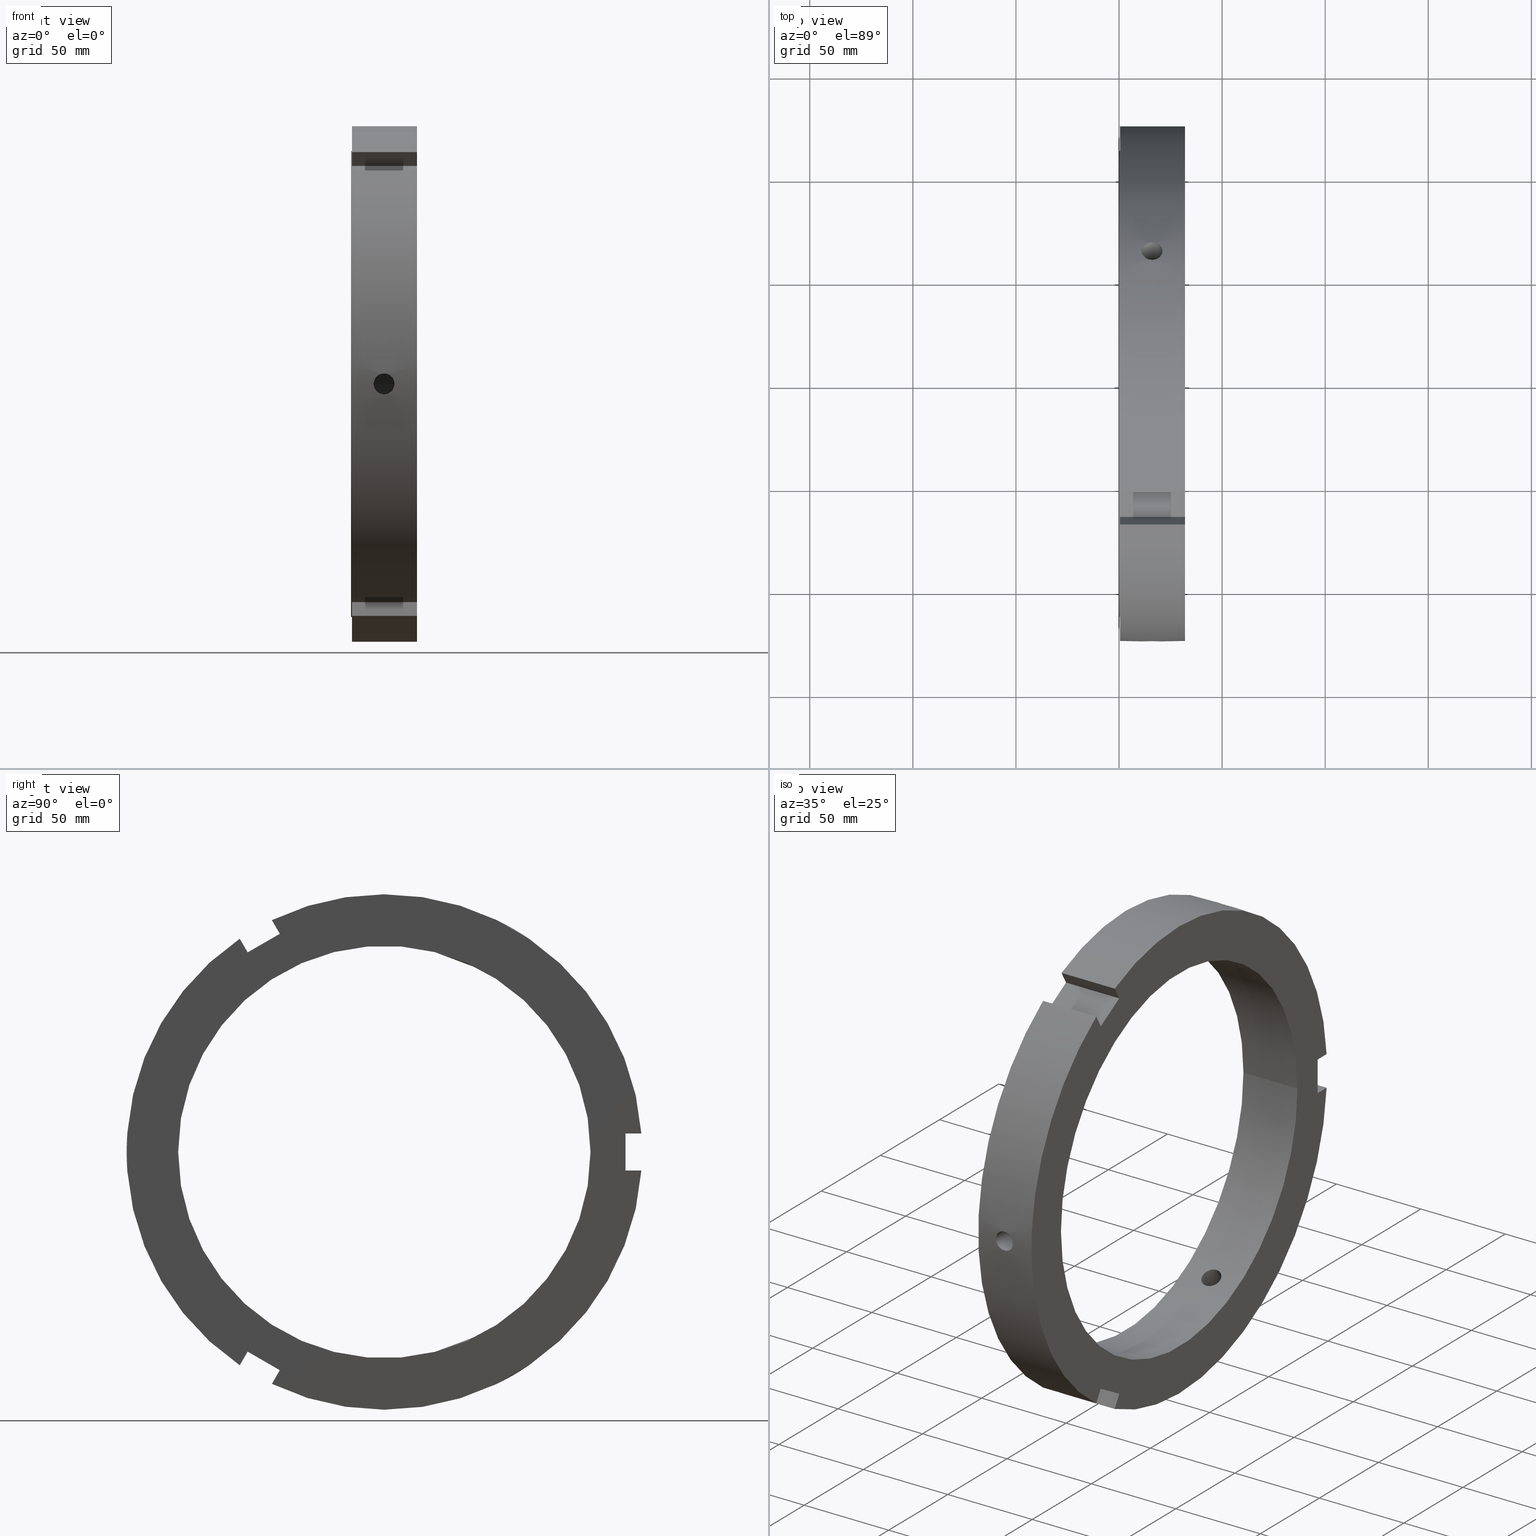
[diagram: canonical four-view strip — front | top / right | iso, engineering-drawing reading convention]
A machine part, canonical four-view strip (front | top / right | iso — engineering-drawing reading convention). The complete STEP part file that produces these views, byte-faithful:
ISO-10303-21;
HEADER;
/****************************************************************
 * Generated by software with PDElib inside                    *
 * PDElib Version v51a, created Wed 11/30/2011                  *
 * ITI Transcendata (http://www.transcendata.com/)              *
 ****************************************************************/
FILE_DESCRIPTION((''),'2;1');
FILE_NAME('C:\\Users\\sugidesign\\Documents\\Fukuda\\3Ddata\\ZMTtype\\FKD ZMT200.stp','2014-02-21T21:17:50',('sugidesign'),(''),'Autodesk Inventor LT ','Autodesk Inventor LT ','');
FILE_SCHEMA(('CONFIG_CONTROL_DESIGN'));
ENDSEC;
DATA;
#5=APPLICATION_CONTEXT('configuration controlled 3D designs of mechanical parts and assemblies');
#6=APPLICATION_PROTOCOL_DEFINITION('International Standard','ap203_configuration_controlled_3d_design_of_mechanical_parts_and_assemblies_mim_lf',2004,#5);
#7=PRODUCT_CONTEXT('',#5,'mechanical');
#8=PRODUCT('FKD ZMT200','FKD ZMT200',$,(#7));
#9=PRODUCT_RELATED_PRODUCT_CATEGORY('part',$,(#8));
#10=PRODUCT_DEFINITION_FORMATION('',$,#8);
#11=PRODUCT_DEFINITION_CONTEXT('part definition',#5,'design');
#12=PRODUCT_DEFINITION('',$,#10,#11);
#18=(NAMED_UNIT(*)PLANE_ANGLE_UNIT()SI_UNIT($,.RADIAN.));
#19=DIMENSIONAL_EXPONENTS(0.0,0.0,0.0,0.0,0.0,0.0,0.0);
#20=PLANE_ANGLE_MEASURE_WITH_UNIT(PLANE_ANGLE_MEASURE(0.0174532925),#18);
#24=(CONVERSION_BASED_UNIT('DEGREE',#20)NAMED_UNIT(#19)PLANE_ANGLE_UNIT());
#28=(NAMED_UNIT(*)SI_UNIT($,.STERADIAN.)SOLID_ANGLE_UNIT());
#32=(LENGTH_UNIT()NAMED_UNIT(*)SI_UNIT(.MILLI.,.METRE.));
#34=UNCERTAINTY_MEASURE_WITH_UNIT(LENGTH_MEASURE(0.01),#32,'DISTANCE_ACCURACY_VALUE','');
#36=(GEOMETRIC_REPRESENTATION_CONTEXT(3)GLOBAL_UNCERTAINTY_ASSIGNED_CONTEXT((#34))GLOBAL_UNIT_ASSIGNED_CONTEXT((#24,#28,#32))REPRESENTATION_CONTEXT('None','None'));
#37=AXIS2_PLACEMENT_3D('',#38,#39,#40);
#38=CARTESIAN_POINT('',(0.0,0.0,0.0));
#39=DIRECTION('',(0.0,0.0,1.0));
#40=DIRECTION('',(1.0,0.0,0.0));
#41=SHAPE_REPRESENTATION('',(#37),#36);
#42=PRODUCT_DEFINITION_SHAPE('','',#12);
#43=SHAPE_DEFINITION_REPRESENTATION(#42,#41);
#49=(NAMED_UNIT(*)PLANE_ANGLE_UNIT()SI_UNIT($,.RADIAN.));
#50=DIMENSIONAL_EXPONENTS(0.0,0.0,0.0,0.0,0.0,0.0,0.0);
#51=PLANE_ANGLE_MEASURE_WITH_UNIT(PLANE_ANGLE_MEASURE(0.0174532925),#49);
#55=(CONVERSION_BASED_UNIT('DEGREE',#51)NAMED_UNIT(#50)PLANE_ANGLE_UNIT());
#59=(NAMED_UNIT(*)SI_UNIT($,.STERADIAN.)SOLID_ANGLE_UNIT());
#63=(LENGTH_UNIT()NAMED_UNIT(*)SI_UNIT(.MILLI.,.METRE.));
#65=UNCERTAINTY_MEASURE_WITH_UNIT(LENGTH_MEASURE(0.000001),#63,'DISTANCE_ACCURACY_VALUE','');
#67=(GEOMETRIC_REPRESENTATION_CONTEXT(3)GLOBAL_UNCERTAINTY_ASSIGNED_CONTEXT((#65))GLOBAL_UNIT_ASSIGNED_CONTEXT((#55,#59,#63))REPRESENTATION_CONTEXT('','3D'));
#68=CARTESIAN_POINT('',(15.999999999999975,177.35938501767177,307.25485216485737));
#69=DIRECTION('',(0.0,-0.500000000000001,-0.866025403784438));
#70=DIRECTION('',(-1.0,0.0,0.0));
#71=AXIS2_PLACEMENT_3D('',#68,#69,#70);
#72=CYLINDRICAL_SURFACE('',#71,5.053);
#73=CARTESIAN_POINT('',(15.999999999999975,66.799823805904879,105.65407488355604));
#74=VERTEX_POINT('',#73);
#75=CARTESIAN_POINT('',(15.999999999999975,66.799823805904865,105.65407488355604));
#76=CARTESIAN_POINT('',(16.634539898765915,66.799823805904865,105.65407488355604));
#77=CARTESIAN_POINT('',(17.311328175890797,66.692639806818789,105.72208082410461));
#78=CARTESIAN_POINT('',(18.556263846837638,66.255606156496384,105.99651518313765));
#79=CARTESIAN_POINT('',(19.124417048440161,65.925621242383059,106.20270178079448));
#80=CARTESIAN_POINT('',(20.021609249121362,65.16134981881541,106.67333261011693));
#81=CARTESIAN_POINT('',(20.410476452290453,64.676076732797313,106.96912009274152));
#82=CARTESIAN_POINT('',(20.926173719096191,63.607415453230338,107.60801203591141));
#83=CARTESIAN_POINT('',(21.052999999999969,63.023884439497088,107.95088062767005));
#84=CARTESIAN_POINT('',(21.05299999999998,61.924678049597063,108.58515963331965));
#85=CARTESIAN_POINT('',(20.926172027311864,61.335816936191634,108.9188005909576));
#86=CARTESIAN_POINT('',(20.410471918155388,60.247892729625015,109.52433055282179));
#87=CARTESIAN_POINT('',(20.021603653115172,59.748962345568103,109.79646125430671));
#88=CARTESIAN_POINT('',(19.124412178461192,58.959038589527125,110.2226527198965));
#89=CARTESIAN_POINT('',(18.556261137858222,58.615392390216819,110.40517358820146));
#90=CARTESIAN_POINT('',(17.311328183428717,58.159087048186457,110.64622530330053));
#91=CARTESIAN_POINT('',(16.634540372385892,58.046569781148861,110.70499418112185));
#92=CARTESIAN_POINT('',(15.365459627614053,58.046569781148861,110.70499418112185));
#93=CARTESIAN_POINT('',(14.68867181657123,58.159087048186457,110.64622530330053));
#94=CARTESIAN_POINT('',(13.443738862141728,58.615392390216819,110.40517358820146));
#95=CARTESIAN_POINT('',(12.875587821538756,58.959038589527125,110.2226527198965));
#96=CARTESIAN_POINT('',(11.978396346884779,59.748962345568103,109.79646125430671));
#97=CARTESIAN_POINT('',(11.589528081844557,60.247892729625022,109.52433055282179));
#98=CARTESIAN_POINT('',(11.073827972688084,61.335816936191627,108.9188005909576));
#99=CARTESIAN_POINT('',(10.946999999999969,61.924678049597055,108.58515963331965));
#100=CARTESIAN_POINT('',(10.946999999999978,63.023884439497088,107.95088062767005));
#101=CARTESIAN_POINT('',(11.073826280903749,63.607415453230345,107.60801203591141));
#102=CARTESIAN_POINT('',(11.589523547709497,64.676076732797327,106.96912009274151));
#103=CARTESIAN_POINT('',(11.978390750878582,65.16134981881541,106.67333261011694));
#104=CARTESIAN_POINT('',(12.875582951559785,65.925621242383059,106.20270178079448));
#105=CARTESIAN_POINT('',(13.443736153162311,66.255606156496384,105.99651518313765));
#106=CARTESIAN_POINT('',(14.688671824109152,66.692639806818789,105.72208082410461));
#107=CARTESIAN_POINT('',(15.365460101234031,66.799823805904865,105.65407488355604));
#108=CARTESIAN_POINT('',(15.999999999999972,66.799823805904865,105.65407488355604));
#109=B_SPLINE_CURVE_WITH_KNOTS('',3,(#75,#76,#77,#78,#79,#80,#81,#82,#83,#84,#85,#86,#87,#88,#89,#90,#91,#92,#93,#94,#95,#96,#97,#98,#99,#100,#101,#102,#103,#104,#105,#106,#107,#108),.UNSPECIFIED.,.T.,.U.,(4,2,2,2,2,2,2,2,2,2,2,2,2,2,2,2,4),(0.0,0.190361969629782,0.380723939259564,0.571085258675598,0.761446578091632,0.951809317561347,1.142172057031061,1.332534168746837,1.522896280462613,1.71325839217839,1.903620503894165,2.09398324336388,2.284345982833595,2.474707302249628,2.665068621665663,2.855430591295445,3.045792560925227),.UNSPECIFIED.);
#110=EDGE_CURVE('',#74,#74,#109,.T.);
#111=ORIENTED_EDGE('',*,*,#110,.F.);
#112=EDGE_LOOP('',(#111));
#113=FACE_OUTER_BOUND('',#112,.T.);
#114=CARTESIAN_POINT('',(15.999999999999975,54.287187545342242,83.981553143632922));
#115=VERTEX_POINT('',#114);
#116=CARTESIAN_POINT('',(15.999999999999975,54.287187545342206,83.981553143632937));
#117=CARTESIAN_POINT('',(15.365418436397359,54.287187545342206,83.981553143632937));
#118=CARTESIAN_POINT('',(14.688612043602964,54.180654323349671,84.050718796506089));
#119=CARTESIAN_POINT('',(13.443687128228978,53.746008479316949,84.329314034823113));
#120=CARTESIAN_POINT('',(12.875559516983506,53.417727458635582,84.538440174283153));
#121=CARTESIAN_POINT('',(11.97841131245228,52.656676460987498,85.014562845706649));
#122=CARTESIAN_POINT('',(11.589550721528081,52.173117031114764,85.313266597317806));
#123=CARTESIAN_POINT('',(11.073842110040466,51.106837676011935,85.956260627153313));
#124=CARTESIAN_POINT('',(10.946999999999974,50.523937820894048,86.300257221341184));
#125=CARTESIAN_POINT('',(10.946999999999974,49.424621477739251,86.934512655054107));
#126=CARTESIAN_POINT('',(11.073844754652999,48.835057767136753,87.266973943154227));
#127=CARTESIAN_POINT('',(11.589557809032717,47.744697355418275,87.868262090224576));
#128=CARTESIAN_POINT('',(11.978420059590974,47.244064792742165,88.137391732525828));
#129=CARTESIAN_POINT('',(12.875567127552397,46.450943695473548,88.557954511774568));
#130=CARTESIAN_POINT('',(13.443691360268444,46.105581404633291,88.737489256011401));
#131=CARTESIAN_POINT('',(14.688612028518014,45.646836445148764,88.974338765420541));
#132=CARTESIAN_POINT('',(15.365417693025883,45.533632505297987,89.031951067425652));
#133=CARTESIAN_POINT('',(16.634582306974064,45.533632505297987,89.031951067425652));
#134=CARTESIAN_POINT('',(17.311387971481935,45.646836445148779,88.974338765420541));
#135=CARTESIAN_POINT('',(18.556308639731501,46.105581404633291,88.737489256011401));
#136=CARTESIAN_POINT('',(19.124432872447553,46.450943695473548,88.557954511774582));
#137=CARTESIAN_POINT('',(20.02157994040898,47.244064792742165,88.137391732525828));
#138=CARTESIAN_POINT('',(20.410442190967238,47.744697355418289,87.868262090224562));
#139=CARTESIAN_POINT('',(20.926155245346955,48.835057767136767,87.266973943154213));
#140=CARTESIAN_POINT('',(21.05299999999998,49.424621477739251,86.934512655054107));
#141=CARTESIAN_POINT('',(21.052999999999969,50.523937820894048,86.300257221341184));
#142=CARTESIAN_POINT('',(20.926157889959484,51.106837676011935,85.956260627153313));
#143=CARTESIAN_POINT('',(20.410449278471869,52.173117031114764,85.313266597317806));
#144=CARTESIAN_POINT('',(20.02158868754767,52.656676460987498,85.014562845706649));
#145=CARTESIAN_POINT('',(19.124440483016443,53.417727458635582,84.538440174283153));
#146=CARTESIAN_POINT('',(18.556312871770974,53.746008479316949,84.329314034823113));
#147=CARTESIAN_POINT('',(17.311387956396985,54.180654323349671,84.050718796506089));
#148=CARTESIAN_POINT('',(16.634581563602595,54.287187545342206,83.981553143632937));
#149=CARTESIAN_POINT('',(15.999999999999977,54.287187545342206,83.981553143632937));
#150=B_SPLINE_CURVE_WITH_KNOTS('',3,(#116,#117,#118,#119,#120,#121,#122,#123,#124,#125,#126,#127,#128,#129,#130,#131,#132,#133,#134,#135,#136,#137,#138,#139,#140,#141,#142,#143,#144,#145,#146,#147,#148,#149),.UNSPECIFIED.,.T.,.U.,(4,2,2,2,2,2,2,2,2,2,2,2,2,2,2,2,4),(0.0,0.190374469080785,0.380748938161569,0.571122376250658,0.761495814339746,0.951871472082737,1.142247129825728,1.332621821917955,1.522996514010182,1.713371206102409,1.903745898194637,2.094121555937627,2.284497213680618,2.474870651769706,2.665244089858795,2.855618558939579,3.045993028020364),.UNSPECIFIED.);
#151=EDGE_CURVE('',#115,#115,#150,.T.);
#152=ORIENTED_EDGE('',*,*,#151,.F.);
#153=EDGE_LOOP('',(#152));
#154=FACE_BOUND('',#153,.T.);
#155=ADVANCED_FACE('',(#113,#154),#72,.F.);
#156=CARTESIAN_POINT('',(15.999999999999975,177.41081490196279,-307.22515910731755));
#157=DIRECTION('',(0.0,-0.5,0.866025403784439));
#158=DIRECTION('',(-1.0,0.0,0.0));
#159=AXIS2_PLACEMENT_3D('',#156,#157,#158);
#160=CYLINDRICAL_SURFACE('',#159,5.053);
#161=CARTESIAN_POINT('',(15.999999999999975,58.099200959550515,-110.67738182601613));
#162=VERTEX_POINT('',#161);
#163=CARTESIAN_POINT('',(15.999999999999972,58.099200959550508,-110.67738182601613));
#164=CARTESIAN_POINT('',(16.634539898765912,58.099200959550508,-110.67738182601613));
#165=CARTESIAN_POINT('',(17.311328175890807,58.211687831216842,-110.61856073020267));
#166=CARTESIAN_POINT('',(18.556263846837648,58.667871782971979,-110.37729566623133));
#167=CARTESIAN_POINT('',(19.124417048440172,59.011427071519371,-110.19461364657201));
#168=CARTESIAN_POINT('',(20.021609249121369,59.801141037300596,-109.76805059303715));
#169=CARTESIAN_POINT('',(20.410476452290467,60.299937054383946,-109.4956855140849));
#170=CARTESIAN_POINT('',(20.926173719096202,61.387564347225769,-108.88964366952408));
#171=CARTESIAN_POINT('',(21.05299999999998,61.976262764715173,-108.55572528361428));
#172=CARTESIAN_POINT('',(21.052999999999969,63.075167691644864,-107.92092412878347));
#173=CARTESIAN_POINT('',(20.926172027311868,63.658539793404998,-107.57777592409255));
#174=CARTESIAN_POINT('',(20.410471918155388,64.726906226415338,-106.93837090474595));
#175=CARTESIAN_POINT('',(20.021603653115164,65.212043519079415,-106.6423498681752));
#176=CARTESIAN_POINT('',(19.124412178461185,65.976098033176783,-106.17135156118577));
#177=CARTESIAN_POINT('',(18.556261137858204,66.305988841504785,-105.96500565682156));
#178=CARTESIAN_POINT('',(17.311328183428703,66.742898421421572,-105.69035949629026));
#179=CARTESIAN_POINT('',(16.634540372385892,66.850052396085559,-105.62230112358192));
#180=CARTESIAN_POINT('',(15.365459627614054,66.850052396085559,-105.62230112358192));
#181=CARTESIAN_POINT('',(14.688671816571244,66.742898421421572,-105.69035949629026));
#182=CARTESIAN_POINT('',(13.443738862141743,66.305988841504785,-105.96500565682156));
#183=CARTESIAN_POINT('',(12.875587821538765,65.976098033176797,-106.17135156118577));
#184=CARTESIAN_POINT('',(11.978396346884786,65.212043519079415,-106.64234986817519));
#185=CARTESIAN_POINT('',(11.58952808184457,64.726906226415338,-106.93837090474595));
#186=CARTESIAN_POINT('',(11.073827972688083,63.658539793405005,-107.57777592409255));
#187=CARTESIAN_POINT('',(10.946999999999974,63.075167691644864,-107.92092412878347));
#188=CARTESIAN_POINT('',(10.946999999999974,61.976262764715173,-108.55572528361428));
#189=CARTESIAN_POINT('',(11.073826280903745,61.387564347225769,-108.88964366952408));
#190=CARTESIAN_POINT('',(11.589523547709481,60.299937054383946,-109.4956855140849));
#191=CARTESIAN_POINT('',(11.978390750878578,59.801141037300596,-109.76805059303715));
#192=CARTESIAN_POINT('',(12.875582951559776,59.011427071519378,-110.19461364657201));
#193=CARTESIAN_POINT('',(13.443736153162288,58.667871782971986,-110.37729566623133));
#194=CARTESIAN_POINT('',(14.688671824109127,58.211687831216842,-110.61856073020267));
#195=CARTESIAN_POINT('',(15.365460101234035,58.099200959550508,-110.67738182601613));
#196=CARTESIAN_POINT('',(15.999999999999975,58.099200959550508,-110.67738182601613));
#197=B_SPLINE_CURVE_WITH_KNOTS('',3,(#163,#164,#165,#166,#167,#168,#169,#170,#171,#172,#173,#174,#175,#176,#177,#178,#179,#180,#181,#182,#183,#184,#185,#186,#187,#188,#189,#190,#191,#192,#193,#194,#195,#196),.UNSPECIFIED.,.T.,.U.,(4,2,2,2,2,2,2,2,2,2,2,2,2,2,2,2,4),(0.0,0.190361969629782,0.380723939259565,0.571085258675598,0.761446578091632,0.951809317561346,1.142172057031061,1.332534168746836,1.522896280462612,1.713258392178388,1.903620503894164,2.093983243363878,2.284345982833592,2.474707302249626,2.66506862166566,2.855430591295442,3.045792560925225),.UNSPECIFIED.);
#198=EDGE_CURVE('',#162,#162,#197,.T.);
#199=ORIENTED_EDGE('',*,*,#198,.F.);
#200=EDGE_LOOP('',(#199));
#201=FACE_OUTER_BOUND('',#200,.T.);
#202=CARTESIAN_POINT('',(15.999999999999975,45.586564698987893,-89.004860086093004));
#203=VERTEX_POINT('',#202);
#204=CARTESIAN_POINT('',(15.999999999999977,45.586564698987885,-89.004860086093004));
#205=CARTESIAN_POINT('',(15.365418436397357,45.586564698987885,-89.004860086093004));
#206=CARTESIAN_POINT('',(14.688612043602937,45.699730522441662,-88.947182435937023));
#207=CARTESIAN_POINT('',(13.443687128228952,46.158323998213945,-88.710065712513867));
#208=CARTESIAN_POINT('',(12.875559516983497,46.503573057922409,-88.530329078753525));
#209=CARTESIAN_POINT('',(11.978411312452275,47.296432885516921,-88.109300916926543));
#210=CARTESIAN_POINT('',(11.589550721528051,47.796897637554274,-87.839878042222793));
#211=CARTESIAN_POINT('',(11.073842110040449,48.886886479424973,-87.23795004809061));
#212=CARTESIAN_POINT('',(10.946999999999969,49.476246196365906,-86.905142262790207));
#213=CARTESIAN_POINT('',(10.946999999999978,50.575185686027019,-86.2702340996792));
#214=CARTESIAN_POINT('',(11.073844754653008,51.157887462597877,-85.925887593198084));
#215=CARTESIAN_POINT('',(11.589557809032733,52.223798478814501,-85.282251850904203));
#216=CARTESIAN_POINT('',(11.978420059590976,52.707187867296845,-84.983256154815592));
#217=CARTESIAN_POINT('',(12.875567127552404,53.467966466646757,-84.506674525927949));
#218=CARTESIAN_POINT('',(13.443691360268463,53.796129261437898,-84.297349380669573));
#219=CARTESIAN_POINT('',(14.688612028518033,54.230619433202349,-84.018489346602479));
#220=CARTESIAN_POINT('',(15.365417693025885,54.337115120234685,-83.94925800988571));
#221=CARTESIAN_POINT('',(16.634582306974064,54.337115120234685,-83.94925800988571));
#222=CARTESIAN_POINT('',(17.311387971481913,54.230619433202349,-84.018489346602479));
#223=CARTESIAN_POINT('',(18.556308639731483,53.796129261437898,-84.297349380669573));
#224=CARTESIAN_POINT('',(19.124432872447542,53.467966466646757,-84.506674525927949));
#225=CARTESIAN_POINT('',(20.021579940408969,52.707187867296845,-84.983256154815592));
#226=CARTESIAN_POINT('',(20.410442190967217,52.223798478814501,-85.282251850904188));
#227=CARTESIAN_POINT('',(20.926155245346937,51.157887462597877,-85.92588759319807));
#228=CARTESIAN_POINT('',(21.052999999999969,50.575185686027019,-86.2702340996792));
#229=CARTESIAN_POINT('',(21.05299999999998,49.476246196365913,-86.905142262790207));
#230=CARTESIAN_POINT('',(20.926157889959498,48.886886479424973,-87.23795004809061));
#231=CARTESIAN_POINT('',(20.410449278471891,47.796897637554267,-87.839878042222793));
#232=CARTESIAN_POINT('',(20.021588687547673,47.296432885516921,-88.109300916926557));
#233=CARTESIAN_POINT('',(19.12444048301645,46.503573057922409,-88.530329078753525));
#234=CARTESIAN_POINT('',(18.556312871770999,46.158323998213945,-88.710065712513867));
#235=CARTESIAN_POINT('',(17.311387956397009,45.699730522441662,-88.947182435937023));
#236=CARTESIAN_POINT('',(16.634581563602591,45.586564698987885,-89.004860086093004));
#237=CARTESIAN_POINT('',(15.999999999999972,45.586564698987885,-89.004860086093004));
#238=B_SPLINE_CURVE_WITH_KNOTS('',3,(#204,#205,#206,#207,#208,#209,#210,#211,#212,#213,#214,#215,#216,#217,#218,#219,#220,#221,#222,#223,#224,#225,#226,#227,#228,#229,#230,#231,#232,#233,#234,#235,#236,#237),.UNSPECIFIED.,.T.,.U.,(4,2,2,2,2,2,2,2,2,2,2,2,2,2,2,2,4),(0.0,0.190374469080785,0.38074893816157,0.571122376250658,0.761495814339745,0.951871472082736,1.142247129825728,1.332621821917954,1.522996514010181,1.713371206102407,1.903745898194634,2.094121555937625,2.284497213680616,2.474870651769703,2.665244089858791,2.855618558939576,3.045993028020361),.UNSPECIFIED.);
#239=EDGE_CURVE('',#203,#203,#238,.T.);
#240=ORIENTED_EDGE('',*,*,#239,.F.);
#241=EDGE_LOOP('',(#240));
#242=FACE_BOUND('',#241,.T.);
#243=ADVANCED_FACE('',(#201,#242),#160,.F.);
#244=CARTESIAN_POINT('',(15.999999999999975,-354.77019991963448,-0.029693057539943));
#245=DIRECTION('',(0.0,1.0,0.0));
#246=DIRECTION('',(-1.0,0.0,0.0));
#247=AXIS2_PLACEMENT_3D('',#244,#245,#246);
#248=CYLINDRICAL_SURFACE('',#247,5.053);
#249=CARTESIAN_POINT('',(15.999999999999975,-124.89902476545537,5.023306942460057));
#250=VERTEX_POINT('',#249);
#251=CARTESIAN_POINT('',(15.999999999999975,-124.89902476545537,5.023306942460057));
#252=CARTESIAN_POINT('',(16.634539898765915,-124.89902476545537,5.023306942460057));
#253=CARTESIAN_POINT('',(17.3113281758908,-124.90432763803565,4.896479906098045));
#254=CARTESIAN_POINT('',(18.556263846837641,-124.92347793946837,4.380780483093657));
#255=CARTESIAN_POINT('',(19.124417048440165,-124.93704831390241,3.991911865777468));
#256=CARTESIAN_POINT('',(20.021609249121365,-124.96249085611598,3.094717982920154));
#257=CARTESIAN_POINT('',(20.41047645229046,-124.97601378718123,2.526565421343341));
#258=CARTESIAN_POINT('',(20.926173719096202,-124.99497980045606,1.281631633612602));
#259=CARTESIAN_POINT('',(21.052999999999976,-125.00014720421223,0.604844655944191));
#260=CARTESIAN_POINT('',(21.052999999999976,-124.99984574124191,-0.66423550453621));
#261=CARTESIAN_POINT('',(20.926172027311864,-124.99435672959663,-1.341024666865077));
#262=CARTESIAN_POINT('',(20.410471918155384,-124.97479895604033,-2.585959648075895));
#263=CARTESIAN_POINT('',(20.021603653115164,-124.96100586464749,-3.154111386131571));
#264=CARTESIAN_POINT('',(19.124412178461185,-124.93513662270388,-4.051301158710786));
#265=CARTESIAN_POINT('',(18.556261137858201,-124.92138123172165,-4.44016793137994));
#266=CARTESIAN_POINT('',(17.311328183428699,-124.90198546960805,-4.955865807010313));
#267=CARTESIAN_POINT('',(16.634540372385892,-124.89662217723438,-5.082693057539943));
#268=CARTESIAN_POINT('',(15.365459627614054,-124.89662217723438,-5.082693057539943));
#269=CARTESIAN_POINT('',(14.688671816571244,-124.90198546960805,-4.955865807010311));
#270=CARTESIAN_POINT('',(13.443738862141743,-124.92138123172165,-4.440167931379937));
#271=CARTESIAN_POINT('',(12.875587821538765,-124.93513662270388,-4.051301158710788));
#272=CARTESIAN_POINT('',(11.978396346884782,-124.96100586464749,-3.154111386131573));
#273=CARTESIAN_POINT('',(11.589528081844565,-124.97479895604033,-2.585959648075896));
#274=CARTESIAN_POINT('',(11.073827972688083,-124.99435672959663,-1.341024666865078));
#275=CARTESIAN_POINT('',(10.946999999999974,-124.99984574124191,-0.664235504536213));
#276=CARTESIAN_POINT('',(10.946999999999974,-125.00014720421223,0.604844655944188));
#277=CARTESIAN_POINT('',(11.073826280903747,-124.99497980045606,1.281631633612598));
#278=CARTESIAN_POINT('',(11.589523547709488,-124.97601378718123,2.526565421343338));
#279=CARTESIAN_POINT('',(11.978390750878582,-124.96249085611598,3.094717982920152));
#280=CARTESIAN_POINT('',(12.875582951559785,-124.93704831390241,3.991911865777468));
#281=CARTESIAN_POINT('',(13.443736153162309,-124.92347793946837,4.380780483093658));
#282=CARTESIAN_POINT('',(14.688671824109152,-124.90432763803565,4.896479906098046));
#283=CARTESIAN_POINT('',(15.365460101234035,-124.89902476545537,5.023306942460057));
#284=CARTESIAN_POINT('',(15.999999999999975,-124.89902476545537,5.023306942460057));
#285=B_SPLINE_CURVE_WITH_KNOTS('',3,(#251,#252,#253,#254,#255,#256,#257,#258,#259,#260,#261,#262,#263,#264,#265,#266,#267,#268,#269,#270,#271,#272,#273,#274,#275,#276,#277,#278,#279,#280,#281,#282,#283,#284),.UNSPECIFIED.,.T.,.U.,(4,2,2,2,2,2,2,2,2,2,2,2,2,2,2,2,4),(0.0,0.190361969629782,0.380723939259564,0.571085258675599,0.761446578091633,0.951809317561348,1.142172057031063,1.332534168746839,1.522896280462614,1.71325839217839,1.903620503894165,2.09398324336388,2.284345982833595,2.474707302249629,2.665068621665664,2.855430591295447,3.045792560925229),.UNSPECIFIED.);
#286=EDGE_CURVE('',#250,#250,#285,.T.);
#287=ORIENTED_EDGE('',*,*,#286,.F.);
#288=EDGE_LOOP('',(#287));
#289=FACE_OUTER_BOUND('',#288,.T.);
#290=CARTESIAN_POINT('',(15.999999999999975,-99.873752244330106,5.023306942460057));
#291=VERTEX_POINT('',#290);
#292=CARTESIAN_POINT('',(15.999999999999975,-99.873752244330106,5.023306942460057));
#293=CARTESIAN_POINT('',(15.365418436397356,-99.873752244330106,5.023306942460057));
#294=CARTESIAN_POINT('',(14.688612043602948,-99.880384845791355,4.896463639430929));
#295=CARTESIAN_POINT('',(13.443687128228961,-99.904332477530886,4.380751677690747));
#296=CARTESIAN_POINT('',(12.875559516983504,-99.921300516557949,3.991888904470358));
#297=CARTESIAN_POINT('',(11.978411312452282,-99.953109346504391,3.094738071219871));
#298=CARTESIAN_POINT('',(11.58955072152806,-99.970014668669023,2.526611444904989));
#299=CARTESIAN_POINT('',(11.073842110040452,-99.993724155436894,1.281689420937287));
#300=CARTESIAN_POINT('',(10.946999999999974,-100.00018401725995,0.604885041449013));
#301=CARTESIAN_POINT('',(10.946999999999974,-99.999807163766263,-0.664278555374918));
#302=CARTESIAN_POINT('',(11.073844754652995,-99.992945229734588,-1.341086349956148));
#303=CARTESIAN_POINT('',(11.589557809032717,-99.968495834232755,-2.586010239320387));
#304=CARTESIAN_POINT('',(11.978420059590976,-99.951252660038989,-3.154135577710236));
#305=CARTESIAN_POINT('',(12.875567127552401,-99.918910162120284,-4.05127998584662));
#306=CARTESIAN_POINT('',(13.443691360268454,-99.901710666071196,-4.440139875341859));
#307=CARTESIAN_POINT('',(14.688612028518026,-99.877455878351128,-4.955849418818085));
#308=CARTESIAN_POINT('',(15.365417693025885,-99.870747625532644,-5.082693057539943));
#309=CARTESIAN_POINT('',(16.634582306974064,-99.870747625532644,-5.082693057539943));
#310=CARTESIAN_POINT('',(17.311387971481921,-99.877455878351128,-4.955849418818085));
#311=CARTESIAN_POINT('',(18.55630863973149,-99.901710666071196,-4.44013987534186));
#312=CARTESIAN_POINT('',(19.124432872447542,-99.918910162120284,-4.051279985846621));
#313=CARTESIAN_POINT('',(20.021579940408969,-99.951252660038975,-3.154135577710238));
#314=CARTESIAN_POINT('',(20.410442190967224,-99.968495834232755,-2.586010239320389));
#315=CARTESIAN_POINT('',(20.926155245346951,-99.992945229734588,-1.341086349956151));
#316=CARTESIAN_POINT('',(21.052999999999969,-99.999807163766249,-0.664278555374919));
#317=CARTESIAN_POINT('',(21.052999999999976,-100.00018401725995,0.604885041449012));
#318=CARTESIAN_POINT('',(20.926157889959498,-99.993724155436894,1.281689420937285));
#319=CARTESIAN_POINT('',(20.410449278471887,-99.970014668669023,2.526611444904989));
#320=CARTESIAN_POINT('',(20.02158868754767,-99.953109346504391,3.094738071219871));
#321=CARTESIAN_POINT('',(19.124440483016446,-99.921300516557949,3.991888904470358));
#322=CARTESIAN_POINT('',(18.556312871770988,-99.904332477530886,4.380751677690747));
#323=CARTESIAN_POINT('',(17.311387956396999,-99.880384845791355,4.896463639430929));
#324=CARTESIAN_POINT('',(16.634581563602591,-99.873752244330106,5.023306942460057));
#325=CARTESIAN_POINT('',(15.999999999999972,-99.873752244330106,5.023306942460057));
#326=B_SPLINE_CURVE_WITH_KNOTS('',3,(#292,#293,#294,#295,#296,#297,#298,#299,#300,#301,#302,#303,#304,#305,#306,#307,#308,#309,#310,#311,#312,#313,#314,#315,#316,#317,#318,#319,#320,#321,#322,#323,#324,#325),.UNSPECIFIED.,.T.,.U.,(4,2,2,2,2,2,2,2,2,2,2,2,2,2,2,2,4),(0.0,0.190374469080785,0.380748938161571,0.571122376250658,0.761495814339745,0.951871472082736,1.142247129825727,1.332621821917954,1.522996514010182,1.713371206102409,1.903745898194636,2.094121555937627,2.284497213680618,2.474870651769705,2.665244089858793,2.855618558939578,3.045993028020363),.UNSPECIFIED.);
#327=EDGE_CURVE('',#291,#291,#326,.T.);
#328=ORIENTED_EDGE('',*,*,#327,.F.);
#329=EDGE_LOOP('',(#328));
#330=FACE_BOUND('',#329,.T.);
#331=ADVANCED_FACE('',(#289,#330),#248,.F.);
#332=CARTESIAN_POINT('',(31.999999999999975,-70.132018136094786,-103.47221864905804));
#333=DIRECTION('',(0.0,-0.866025403784439,0.5));
#334=DIRECTION('',(0.0,0.5,0.866025403784438));
#335=AXIS2_PLACEMENT_3D('',#332,#333,#334);
#336=PLANE('',#335);
#337=CARTESIAN_POINT('',(0.499999999999963,-66.294228634060005,-96.82497224277931));
#338=VERTEX_POINT('',#337);
#339=CARTESIAN_POINT('',(0.499999999999963,-70.132018136094786,-103.47221864905804));
#340=VERTEX_POINT('',#339);
#341=CARTESIAN_POINT('',(0.499999999999965,-66.294228634060005,-96.824972242779324));
#342=DIRECTION('',(0.0,-0.500000000000002,-0.866025403784438));
#343=VECTOR('',#342,7.675579004069564);
#344=LINE('',#341,#343);
#345=EDGE_CURVE('',#338,#340,#344,.T.);
#346=ORIENTED_EDGE('',*,*,#345,.F.);
#347=CARTESIAN_POINT('',(31.999999999999975,-66.294228634060005,-96.82497224277931));
#348=VERTEX_POINT('',#347);
#349=CARTESIAN_POINT('',(31.999999999999975,-66.294228634060005,-96.82497224277931));
#350=DIRECTION('',(-1.0,0.0,0.0));
#351=VECTOR('',#350,31.500000000000014);
#352=LINE('',#349,#351);
#353=EDGE_CURVE('',#348,#338,#352,.T.);
#354=ORIENTED_EDGE('',*,*,#353,.F.);
#355=CARTESIAN_POINT('',(31.999999999999975,-70.132018136094786,-103.47221864905804));
#356=VERTEX_POINT('',#355);
#357=CARTESIAN_POINT('',(31.999999999999975,-70.132018136094814,-103.47221864905805));
#358=DIRECTION('',(0.0,0.500000000000001,0.866025403784438));
#359=VECTOR('',#358,7.675579004069609);
#360=LINE('',#357,#359);
#361=EDGE_CURVE('',#356,#348,#360,.T.);
#362=ORIENTED_EDGE('',*,*,#361,.F.);
#363=CARTESIAN_POINT('',(0.499999999999964,-70.132018136094786,-103.47221864905802));
#364=DIRECTION('',(1.0,0.0,0.0));
#365=VECTOR('',#364,31.500000000000014);
#366=LINE('',#363,#365);
#367=EDGE_CURVE('',#340,#356,#366,.T.);
#368=ORIENTED_EDGE('',*,*,#367,.F.);
#369=EDGE_LOOP('',(#346,#354,#362,#368));
#370=FACE_OUTER_BOUND('',#369,.T.);
#371=ADVANCED_FACE('',(#370),#336,.F.);
#372=CARTESIAN_POINT('',(31.999999999999975,-66.294228634060005,-96.82497224277931));
#373=DIRECTION('',(0.0,0.500000000000001,0.866025403784438));
#374=DIRECTION('',(0.0,0.866025403784438,-0.5));
#375=AXIS2_PLACEMENT_3D('',#372,#373,#374);
#376=PLANE('',#375);
#377=CARTESIAN_POINT('',(0.499999999999963,-50.705771365940109,-105.82497224277932));
#378=VERTEX_POINT('',#377);
#379=CARTESIAN_POINT('',(0.499999999999965,-50.705771365940123,-105.82497224277934));
#380=DIRECTION('',(0.0,-0.866025403784439,0.5));
#381=VECTOR('',#380,18.000000000000018);
#382=LINE('',#379,#381);
#383=EDGE_CURVE('',#378,#338,#382,.T.);
#384=ORIENTED_EDGE('',*,*,#383,.F.);
#385=CARTESIAN_POINT('',(31.999999999999975,-50.705771365940109,-105.82497224277932));
#386=VERTEX_POINT('',#385);
#387=CARTESIAN_POINT('',(31.999999999999975,-50.705771365940109,-105.82497224277932));
#388=DIRECTION('',(-1.0,0.0,0.0));
#389=VECTOR('',#388,31.500000000000014);
#390=LINE('',#387,#389);
#391=EDGE_CURVE('',#386,#378,#390,.T.);
#392=ORIENTED_EDGE('',*,*,#391,.F.);
#393=CARTESIAN_POINT('',(31.999999999999975,-66.294228634060033,-96.824972242779324));
#394=DIRECTION('',(0.0,0.866025403784439,-0.5));
#395=VECTOR('',#394,18.000000000000018);
#396=LINE('',#393,#395);
#397=EDGE_CURVE('',#348,#386,#396,.T.);
#398=ORIENTED_EDGE('',*,*,#397,.F.);
#399=ORIENTED_EDGE('',*,*,#353,.T.);
#400=EDGE_LOOP('',(#384,#392,#398,#399));
#401=FACE_OUTER_BOUND('',#400,.T.);
#402=ADVANCED_FACE('',(#401),#376,.F.);
#403=CARTESIAN_POINT('',(31.999999999999975,-50.705771365940109,-105.82497224277932));
#404=DIRECTION('',(0.0,0.866025403784438,-0.500000000000001));
#405=DIRECTION('',(0.0,-0.5,-0.866025403784438));
#406=AXIS2_PLACEMENT_3D('',#403,#404,#405);
#407=PLANE('',#406);
#408=CARTESIAN_POINT('',(0.499999999999963,-54.54356086797489,-112.47221864905804));
#409=VERTEX_POINT('',#408);
#410=CARTESIAN_POINT('',(0.499999999999965,-54.543560867974918,-112.47221864905805));
#411=DIRECTION('',(0.0,0.5,0.866025403784439));
#412=VECTOR('',#411,7.675579004069557);
#413=LINE('',#410,#412);
#414=EDGE_CURVE('',#409,#378,#413,.T.);
#415=ORIENTED_EDGE('',*,*,#414,.F.);
#416=CARTESIAN_POINT('',(31.999999999999975,-54.54356086797489,-112.47221864905804));
#417=VERTEX_POINT('',#416);
#418=CARTESIAN_POINT('',(31.999999999999979,-54.543560867974897,-112.47221864905804));
#419=DIRECTION('',(-1.0,0.0,0.0));
#420=VECTOR('',#419,31.500000000000014);
#421=LINE('',#418,#420);
#422=EDGE_CURVE('',#417,#409,#421,.T.);
#423=ORIENTED_EDGE('',*,*,#422,.F.);
#424=CARTESIAN_POINT('',(31.999999999999975,-50.705771365940123,-105.82497224277935));
#425=DIRECTION('',(0.0,-0.5,-0.866025403784439));
#426=VECTOR('',#425,7.675579004069557);
#427=LINE('',#424,#426);
#428=EDGE_CURVE('',#386,#417,#427,.T.);
#429=ORIENTED_EDGE('',*,*,#428,.F.);
#430=ORIENTED_EDGE('',*,*,#391,.T.);
#431=EDGE_LOOP('',(#415,#423,#429,#430));
#432=FACE_OUTER_BOUND('',#431,.T.);
#433=ADVANCED_FACE('',(#432),#407,.F.);
#434=CARTESIAN_POINT('',(31.999999999999975,-54.543560867974833,112.47221864905805));
#435=DIRECTION('',(0.0,0.866025403784439,0.5));
#436=DIRECTION('',(0.0,0.5,-0.866025403784439));
#437=AXIS2_PLACEMENT_3D('',#434,#435,#436);
#438=PLANE('',#437);
#439=CARTESIAN_POINT('',(0.499999999999963,-50.705771365940045,105.82497224277935));
#440=VERTEX_POINT('',#439);
#441=CARTESIAN_POINT('',(0.499999999999963,-54.543560867974833,112.47221864905805));
#442=VERTEX_POINT('',#441);
#443=CARTESIAN_POINT('',(0.499999999999967,-50.705771365940066,105.82497224277935));
#444=DIRECTION('',(0.0,-0.499999999999999,0.866025403784439));
#445=VECTOR('',#444,7.675579004069586);
#446=LINE('',#443,#445);
#447=EDGE_CURVE('',#440,#442,#446,.T.);
#448=ORIENTED_EDGE('',*,*,#447,.F.);
#449=CARTESIAN_POINT('',(31.999999999999975,-50.705771365940045,105.82497224277935));
#450=VERTEX_POINT('',#449);
#451=CARTESIAN_POINT('',(31.999999999999975,-50.705771365940045,105.82497224277935));
#452=DIRECTION('',(-1.0,0.0,0.0));
#453=VECTOR('',#452,31.500000000000014);
#454=LINE('',#451,#453);
#455=EDGE_CURVE('',#450,#440,#454,.T.);
#456=ORIENTED_EDGE('',*,*,#455,.F.);
#457=CARTESIAN_POINT('',(31.999999999999975,-54.543560867974833,112.47221864905805));
#458=VERTEX_POINT('',#457);
#459=CARTESIAN_POINT('',(31.999999999999975,-54.543560867974847,112.47221864905805));
#460=DIRECTION('',(0.0,0.5,-0.866025403784439));
#461=VECTOR('',#460,7.675579004069557);
#462=LINE('',#459,#461);
#463=EDGE_CURVE('',#458,#450,#462,.T.);
#464=ORIENTED_EDGE('',*,*,#463,.F.);
#465=CARTESIAN_POINT('',(0.499999999999964,-54.543560867974833,112.47221864905805));
#466=DIRECTION('',(1.0,0.0,0.0));
#467=VECTOR('',#466,31.500000000000014);
#468=LINE('',#465,#467);
#469=EDGE_CURVE('',#442,#458,#468,.T.);
#470=ORIENTED_EDGE('',*,*,#469,.F.);
#471=EDGE_LOOP('',(#448,#456,#464,#470));
#472=FACE_OUTER_BOUND('',#471,.T.);
#473=ADVANCED_FACE('',(#472),#438,.F.);
#474=CARTESIAN_POINT('',(31.999999999999975,-50.705771365940045,105.82497224277935));
#475=DIRECTION('',(0.0,0.5,-0.866025403784439));
#476=DIRECTION('',(0.0,-0.866025403784439,-0.5));
#477=AXIS2_PLACEMENT_3D('',#474,#475,#476);
#478=PLANE('',#477);
#479=CARTESIAN_POINT('',(0.499999999999963,-66.294228634059948,96.824972242779353));
#480=VERTEX_POINT('',#479);
#481=CARTESIAN_POINT('',(0.499999999999967,-66.294228634059948,96.824972242779339));
#482=DIRECTION('',(0.0,0.866025403784439,0.499999999999999));
#483=VECTOR('',#482,17.999999999999993);
#484=LINE('',#481,#483);
#485=EDGE_CURVE('',#480,#440,#484,.T.);
#486=ORIENTED_EDGE('',*,*,#485,.F.);
#487=CARTESIAN_POINT('',(31.999999999999975,-66.294228634059948,96.824972242779353));
#488=VERTEX_POINT('',#487);
#489=CARTESIAN_POINT('',(31.999999999999975,-66.294228634059948,96.824972242779353));
#490=DIRECTION('',(-1.0,0.0,0.0));
#491=VECTOR('',#490,31.500000000000014);
#492=LINE('',#489,#491);
#493=EDGE_CURVE('',#488,#480,#492,.T.);
#494=ORIENTED_EDGE('',*,*,#493,.F.);
#495=CARTESIAN_POINT('',(31.999999999999975,-50.705771365940052,105.82497224277935));
#496=DIRECTION('',(0.0,-0.866025403784439,-0.5));
#497=VECTOR('',#496,18.000000000000032);
#498=LINE('',#495,#497);
#499=EDGE_CURVE('',#450,#488,#498,.T.);
#500=ORIENTED_EDGE('',*,*,#499,.F.);
#501=ORIENTED_EDGE('',*,*,#455,.T.);
#502=EDGE_LOOP('',(#486,#494,#500,#501));
#503=FACE_OUTER_BOUND('',#502,.T.);
#504=ADVANCED_FACE('',(#503),#478,.F.);
#505=CARTESIAN_POINT('',(31.999999999999975,-66.294228634059948,96.824972242779353));
#506=DIRECTION('',(0.0,-0.866025403784439,-0.5));
#507=DIRECTION('',(0.0,-0.5,0.866025403784439));
#508=AXIS2_PLACEMENT_3D('',#505,#506,#507);
#509=PLANE('',#508);
#510=CARTESIAN_POINT('',(0.499999999999963,-70.132018136094729,103.47221864905805));
#511=VERTEX_POINT('',#510);
#512=CARTESIAN_POINT('',(0.499999999999967,-70.132018136094757,103.47221864905805));
#513=DIRECTION('',(0.0,0.5,-0.866025403784439));
#514=VECTOR('',#513,7.675579004069557);
#515=LINE('',#512,#514);
#516=EDGE_CURVE('',#511,#480,#515,.T.);
#517=ORIENTED_EDGE('',*,*,#516,.F.);
#518=CARTESIAN_POINT('',(31.999999999999975,-70.132018136094729,103.47221864905805));
#519=VERTEX_POINT('',#518);
#520=CARTESIAN_POINT('',(31.999999999999979,-70.132018136094729,103.47221864905805));
#521=DIRECTION('',(-1.0,0.0,0.0));
#522=VECTOR('',#521,31.500000000000014);
#523=LINE('',#520,#522);
#524=EDGE_CURVE('',#519,#511,#523,.T.);
#525=ORIENTED_EDGE('',*,*,#524,.F.);
#526=CARTESIAN_POINT('',(31.999999999999975,-66.294228634059962,96.824972242779353));
#527=DIRECTION('',(0.0,-0.499999999999999,0.866025403784439));
#528=VECTOR('',#527,7.67557900406957);
#529=LINE('',#526,#528);
#530=EDGE_CURVE('',#488,#519,#529,.T.);
#531=ORIENTED_EDGE('',*,*,#530,.F.);
#532=ORIENTED_EDGE('',*,*,#493,.T.);
#533=EDGE_LOOP('',(#517,#525,#531,#532));
#534=FACE_OUTER_BOUND('',#533,.T.);
#535=ADVANCED_FACE('',(#534),#509,.F.);
#536=CARTESIAN_POINT('',(31.999999999999975,112.5,0.0));
#537=DIRECTION('',(1.0,0.0,0.0));
#538=DIRECTION('',(0.0,0.0,-1.0));
#539=AXIS2_PLACEMENT_3D('',#536,#537,#538);
#540=PLANE('',#539);
#541=ORIENTED_EDGE('',*,*,#361,.T.);
#542=ORIENTED_EDGE('',*,*,#397,.T.);
#543=ORIENTED_EDGE('',*,*,#428,.T.);
#544=CARTESIAN_POINT('',(31.999999999999975,124.67557900406959,-8.999999999999984));
#545=VERTEX_POINT('',#544);
#546=CARTESIAN_POINT('',(31.999999999999975,0.0,0.0));
#547=DIRECTION('',(1.0,0.0,0.0));
#548=DIRECTION('',(0.0,1.0,0.0));
#549=AXIS2_PLACEMENT_3D('',#546,#547,#548);
#550=CIRCLE('',#549,125.0);
#551=EDGE_CURVE('',#417,#545,#550,.T.);
#552=ORIENTED_EDGE('',*,*,#551,.T.);
#553=CARTESIAN_POINT('',(31.999999999999975,117.00000000000001,-8.999999999999988));
#554=VERTEX_POINT('',#553);
#555=CARTESIAN_POINT('',(31.999999999999975,124.67557900406959,-8.999999999999984));
#556=DIRECTION('',(0.0,-1.0,0.0));
#557=VECTOR('',#556,7.675579004069576);
#558=LINE('',#555,#557);
#559=EDGE_CURVE('',#545,#554,#558,.T.);
#560=ORIENTED_EDGE('',*,*,#559,.T.);
#561=CARTESIAN_POINT('',(31.999999999999975,117.00000000000001,9.000000000000016));
#562=VERTEX_POINT('',#561);
#563=CARTESIAN_POINT('',(31.999999999999975,117.00000000000003,-8.999999999999988));
#564=DIRECTION('',(0.0,0.0,1.0));
#565=VECTOR('',#564,18.000000000000007);
#566=LINE('',#563,#565);
#567=EDGE_CURVE('',#554,#562,#566,.T.);
#568=ORIENTED_EDGE('',*,*,#567,.T.);
#569=CARTESIAN_POINT('',(31.999999999999975,124.67557900406959,9.000000000000016));
#570=VERTEX_POINT('',#569);
#571=CARTESIAN_POINT('',(31.999999999999975,117.00000000000001,9.000000000000016));
#572=DIRECTION('',(0.0,1.0,0.0));
#573=VECTOR('',#572,7.675579004069576);
#574=LINE('',#571,#573);
#575=EDGE_CURVE('',#562,#570,#574,.T.);
#576=ORIENTED_EDGE('',*,*,#575,.T.);
#577=CARTESIAN_POINT('',(31.999999999999975,0.0,0.0));
#578=DIRECTION('',(1.0,0.0,0.0));
#579=DIRECTION('',(0.0,1.0,0.0));
#580=AXIS2_PLACEMENT_3D('',#577,#578,#579);
#581=CIRCLE('',#580,125.0);
#582=EDGE_CURVE('',#570,#458,#581,.T.);
#583=ORIENTED_EDGE('',*,*,#582,.T.);
#584=ORIENTED_EDGE('',*,*,#463,.T.);
#585=ORIENTED_EDGE('',*,*,#499,.T.);
#586=ORIENTED_EDGE('',*,*,#530,.T.);
#587=CARTESIAN_POINT('',(31.999999999999975,0.0,0.0));
#588=DIRECTION('',(1.0,0.0,0.0));
#589=DIRECTION('',(0.0,1.0,0.0));
#590=AXIS2_PLACEMENT_3D('',#587,#588,#589);
#591=CIRCLE('',#590,125.0);
#592=EDGE_CURVE('',#519,#356,#591,.T.);
#593=ORIENTED_EDGE('',*,*,#592,.T.);
#594=EDGE_LOOP('',(#541,#542,#543,#552,#560,#568,#576,#583,#584,#585,#586,#593));
#595=FACE_OUTER_BOUND('',#594,.T.);
#596=CARTESIAN_POINT('',(31.999999999999979,100.0,0.0));
#597=VERTEX_POINT('',#596);
#598=CARTESIAN_POINT('',(31.999999999999979,0.0,0.0));
#599=DIRECTION('',(1.0,0.0,0.0));
#600=DIRECTION('',(0.0,1.0,0.0));
#601=AXIS2_PLACEMENT_3D('',#598,#599,#600);
#602=CIRCLE('',#601,100.0);
#603=EDGE_CURVE('',#597,#597,#602,.T.);
#604=ORIENTED_EDGE('',*,*,#603,.F.);
#605=EDGE_LOOP('',(#604));
#606=FACE_BOUND('',#605,.T.);
#607=ADVANCED_FACE('',(#595,#606),#540,.T.);
#608=CARTESIAN_POINT('',(16.249999999999968,0.0,0.0));
#609=DIRECTION('',(1.0,0.0,0.0));
#610=DIRECTION('',(0.0,1.0,0.0));
#611=AXIS2_PLACEMENT_3D('',#608,#609,#610);
#612=CYLINDRICAL_SURFACE('',#611,125.0);
#613=ORIENTED_EDGE('',*,*,#469,.T.);
#614=ORIENTED_EDGE('',*,*,#582,.F.);
#615=CARTESIAN_POINT('',(0.499999999999963,124.67557900406959,9.000000000000016));
#616=VERTEX_POINT('',#615);
#617=CARTESIAN_POINT('',(31.999999999999979,124.67557900406959,9.000000000000016));
#618=DIRECTION('',(-1.0,0.0,0.0));
#619=VECTOR('',#618,31.500000000000014);
#620=LINE('',#617,#619);
#621=EDGE_CURVE('',#570,#616,#620,.T.);
#622=ORIENTED_EDGE('',*,*,#621,.T.);
#623=CARTESIAN_POINT('',(0.499999999999963,0.0,0.0));
#624=DIRECTION('',(1.0,0.0,0.0));
#625=DIRECTION('',(0.0,1.0,0.0));
#626=AXIS2_PLACEMENT_3D('',#623,#624,#625);
#627=CIRCLE('',#626,125.0);
#628=EDGE_CURVE('',#616,#442,#627,.T.);
#629=ORIENTED_EDGE('',*,*,#628,.T.);
#630=EDGE_LOOP('',(#613,#614,#622,#629));
#631=FACE_OUTER_BOUND('',#630,.T.);
#632=ORIENTED_EDGE('',*,*,#110,.T.);
#633=EDGE_LOOP('',(#632));
#634=FACE_BOUND('',#633,.T.);
#635=ADVANCED_FACE('',(#631,#634),#612,.T.);
#636=CARTESIAN_POINT('',(16.249999999999968,0.0,0.0));
#637=DIRECTION('',(1.0,0.0,0.0));
#638=DIRECTION('',(0.0,1.0,0.0));
#639=AXIS2_PLACEMENT_3D('',#636,#637,#638);
#640=CYLINDRICAL_SURFACE('',#639,125.0);
#641=ORIENTED_EDGE('',*,*,#422,.T.);
#642=CARTESIAN_POINT('',(0.499999999999963,124.67557900406959,-8.999999999999984));
#643=VERTEX_POINT('',#642);
#644=CARTESIAN_POINT('',(0.499999999999963,0.0,0.0));
#645=DIRECTION('',(1.0,0.0,0.0));
#646=DIRECTION('',(0.0,1.0,0.0));
#647=AXIS2_PLACEMENT_3D('',#644,#645,#646);
#648=CIRCLE('',#647,125.0);
#649=EDGE_CURVE('',#409,#643,#648,.T.);
#650=ORIENTED_EDGE('',*,*,#649,.T.);
#651=CARTESIAN_POINT('',(0.499999999999964,124.67557900406959,-8.999999999999984));
#652=DIRECTION('',(1.0,0.0,0.0));
#653=VECTOR('',#652,31.500000000000014);
#654=LINE('',#651,#653);
#655=EDGE_CURVE('',#643,#545,#654,.T.);
#656=ORIENTED_EDGE('',*,*,#655,.T.);
#657=ORIENTED_EDGE('',*,*,#551,.F.);
#658=EDGE_LOOP('',(#641,#650,#656,#657));
#659=FACE_OUTER_BOUND('',#658,.T.);
#660=ORIENTED_EDGE('',*,*,#198,.T.);
#661=EDGE_LOOP('',(#660));
#662=FACE_BOUND('',#661,.T.);
#663=ADVANCED_FACE('',(#659,#662),#640,.T.);
#664=CARTESIAN_POINT('',(31.999999999999975,124.67557900406959,-8.999999999999984));
#665=DIRECTION('',(0.0,0.0,-1.0));
#666=DIRECTION('',(0.0,-1.0,0.0));
#667=AXIS2_PLACEMENT_3D('',#664,#665,#666);
#668=PLANE('',#667);
#669=CARTESIAN_POINT('',(0.499999999999963,117.00000000000001,-8.999999999999988));
#670=VERTEX_POINT('',#669);
#671=CARTESIAN_POINT('',(0.499999999999965,117.0,-8.999999999999988));
#672=DIRECTION('',(0.0,1.0,0.0));
#673=VECTOR('',#672,7.67557900406959);
#674=LINE('',#671,#673);
#675=EDGE_CURVE('',#670,#643,#674,.T.);
#676=ORIENTED_EDGE('',*,*,#675,.F.);
#677=CARTESIAN_POINT('',(31.999999999999975,117.00000000000001,-8.999999999999988));
#678=DIRECTION('',(-1.0,0.0,0.0));
#679=VECTOR('',#678,31.500000000000014);
#680=LINE('',#677,#679);
#681=EDGE_CURVE('',#554,#670,#680,.T.);
#682=ORIENTED_EDGE('',*,*,#681,.F.);
#683=ORIENTED_EDGE('',*,*,#559,.F.);
#684=ORIENTED_EDGE('',*,*,#655,.F.);
#685=EDGE_LOOP('',(#676,#682,#683,#684));
#686=FACE_OUTER_BOUND('',#685,.T.);
#687=ADVANCED_FACE('',(#686),#668,.F.);
#688=CARTESIAN_POINT('',(31.999999999999975,117.00000000000001,-8.999999999999988));
#689=DIRECTION('',(0.0,-1.0,0.0));
#690=DIRECTION('',(0.0,0.0,1.0));
#691=AXIS2_PLACEMENT_3D('',#688,#689,#690);
#692=PLANE('',#691);
#693=CARTESIAN_POINT('',(0.499999999999963,117.00000000000001,9.000000000000016));
#694=VERTEX_POINT('',#693);
#695=CARTESIAN_POINT('',(0.499999999999965,117.00000000000001,9.000000000000018));
#696=DIRECTION('',(0.0,0.0,-1.0));
#697=VECTOR('',#696,18.000000000000007);
#698=LINE('',#695,#697);
#699=EDGE_CURVE('',#694,#670,#698,.T.);
#700=ORIENTED_EDGE('',*,*,#699,.F.);
#701=CARTESIAN_POINT('',(31.999999999999975,117.00000000000001,9.000000000000016));
#702=DIRECTION('',(-1.0,0.0,0.0));
#703=VECTOR('',#702,31.500000000000014);
#704=LINE('',#701,#703);
#705=EDGE_CURVE('',#562,#694,#704,.T.);
#706=ORIENTED_EDGE('',*,*,#705,.F.);
#707=ORIENTED_EDGE('',*,*,#567,.F.);
#708=ORIENTED_EDGE('',*,*,#681,.T.);
#709=EDGE_LOOP('',(#700,#706,#707,#708));
#710=FACE_OUTER_BOUND('',#709,.T.);
#711=ADVANCED_FACE('',(#710),#692,.F.);
#712=CARTESIAN_POINT('',(31.999999999999975,117.00000000000001,9.000000000000016));
#713=DIRECTION('',(0.0,0.0,1.0));
#714=DIRECTION('',(0.0,1.0,0.0));
#715=AXIS2_PLACEMENT_3D('',#712,#713,#714);
#716=PLANE('',#715);
#717=CARTESIAN_POINT('',(0.499999999999965,124.67557900406959,9.000000000000016));
#718=DIRECTION('',(0.0,-1.0,0.0));
#719=VECTOR('',#718,7.67557900406959);
#720=LINE('',#717,#719);
#721=EDGE_CURVE('',#616,#694,#720,.T.);
#722=ORIENTED_EDGE('',*,*,#721,.F.);
#723=ORIENTED_EDGE('',*,*,#621,.F.);
#724=ORIENTED_EDGE('',*,*,#575,.F.);
#725=ORIENTED_EDGE('',*,*,#705,.T.);
#726=EDGE_LOOP('',(#722,#723,#724,#725));
#727=FACE_OUTER_BOUND('',#726,.T.);
#728=ADVANCED_FACE('',(#727),#716,.F.);
#729=CARTESIAN_POINT('',(16.249999999999968,0.0,0.0));
#730=DIRECTION('',(1.0,0.0,0.0));
#731=DIRECTION('',(0.0,1.0,0.0));
#732=AXIS2_PLACEMENT_3D('',#729,#730,#731);
#733=CYLINDRICAL_SURFACE('',#732,125.0);
#734=ORIENTED_EDGE('',*,*,#367,.T.);
#735=ORIENTED_EDGE('',*,*,#592,.F.);
#736=ORIENTED_EDGE('',*,*,#524,.T.);
#737=CARTESIAN_POINT('',(0.499999999999963,0.0,0.0));
#738=DIRECTION('',(1.0,0.0,0.0));
#739=DIRECTION('',(0.0,1.0,0.0));
#740=AXIS2_PLACEMENT_3D('',#737,#738,#739);
#741=CIRCLE('',#740,125.0);
#742=EDGE_CURVE('',#511,#340,#741,.T.);
#743=ORIENTED_EDGE('',*,*,#742,.T.);
#744=EDGE_LOOP('',(#734,#735,#736,#743));
#745=FACE_OUTER_BOUND('',#744,.T.);
#746=ORIENTED_EDGE('',*,*,#286,.T.);
#747=EDGE_LOOP('',(#746));
#748=FACE_BOUND('',#747,.T.);
#749=ADVANCED_FACE('',(#745,#748),#733,.T.);
#750=CARTESIAN_POINT('',(-3.262483E-014,106.5,0.0));
#751=DIRECTION('',(-1.0,0.0,0.0));
#752=DIRECTION('',(0.0,0.0,1.0));
#753=AXIS2_PLACEMENT_3D('',#750,#751,#752);
#754=PLANE('',#753);
#755=CARTESIAN_POINT('',(-3.552714E-014,113.0,0.0));
#756=VERTEX_POINT('',#755);
#757=CARTESIAN_POINT('',(-3.552714E-014,0.0,0.0));
#758=DIRECTION('',(1.0,0.0,0.0));
#759=DIRECTION('',(0.0,1.0,0.0));
#760=AXIS2_PLACEMENT_3D('',#757,#758,#759);
#761=CIRCLE('',#760,113.0);
#762=EDGE_CURVE('',#756,#756,#761,.T.);
#763=ORIENTED_EDGE('',*,*,#762,.F.);
#764=EDGE_LOOP('',(#763));
#765=FACE_OUTER_BOUND('',#764,.T.);
#766=CARTESIAN_POINT('',(-2.972252E-014,100.0,0.0));
#767=VERTEX_POINT('',#766);
#768=CARTESIAN_POINT('',(-2.972449E-014,0.0,0.0));
#769=DIRECTION('',(1.0,0.0,0.0));
#770=DIRECTION('',(0.0,1.0,0.0));
#771=AXIS2_PLACEMENT_3D('',#768,#769,#770);
#772=CIRCLE('',#771,100.0);
#773=EDGE_CURVE('',#767,#767,#772,.T.);
#774=ORIENTED_EDGE('',*,*,#773,.T.);
#775=EDGE_LOOP('',(#774));
#776=FACE_BOUND('',#775,.T.);
#777=ADVANCED_FACE('',(#765,#776),#754,.T.);
#778=CARTESIAN_POINT('',(0.249999999999966,0.0,0.0));
#779=DIRECTION('',(1.0,0.0,0.0));
#780=DIRECTION('',(0.0,1.0,0.0));
#781=AXIS2_PLACEMENT_3D('',#778,#779,#780);
#782=CYLINDRICAL_SURFACE('',#781,113.0);
#783=CARTESIAN_POINT('',(0.499999999999967,113.0,0.0));
#784=VERTEX_POINT('',#783);
#785=CARTESIAN_POINT('',(0.499999999999967,0.0,0.0));
#786=DIRECTION('',(1.0,0.0,0.0));
#787=DIRECTION('',(0.0,1.0,0.0));
#788=AXIS2_PLACEMENT_3D('',#785,#786,#787);
#789=CIRCLE('',#788,113.0);
#790=EDGE_CURVE('',#784,#784,#789,.T.);
#791=ORIENTED_EDGE('',*,*,#790,.F.);
#792=EDGE_LOOP('',(#791));
#793=FACE_OUTER_BOUND('',#792,.T.);
#794=ORIENTED_EDGE('',*,*,#762,.T.);
#795=EDGE_LOOP('',(#794));
#796=FACE_BOUND('',#795,.T.);
#797=ADVANCED_FACE('',(#793,#796),#782,.T.);
#798=CARTESIAN_POINT('',(0.499999999999965,119.0,0.0));
#799=DIRECTION('',(-1.0,0.0,0.0));
#800=DIRECTION('',(0.0,0.0,1.0));
#801=AXIS2_PLACEMENT_3D('',#798,#799,#800);
#802=PLANE('',#801);
#803=ORIENTED_EDGE('',*,*,#345,.T.);
#804=ORIENTED_EDGE('',*,*,#742,.F.);
#805=ORIENTED_EDGE('',*,*,#516,.T.);
#806=ORIENTED_EDGE('',*,*,#485,.T.);
#807=ORIENTED_EDGE('',*,*,#447,.T.);
#808=ORIENTED_EDGE('',*,*,#628,.F.);
#809=ORIENTED_EDGE('',*,*,#721,.T.);
#810=ORIENTED_EDGE('',*,*,#699,.T.);
#811=ORIENTED_EDGE('',*,*,#675,.T.);
#812=ORIENTED_EDGE('',*,*,#649,.F.);
#813=ORIENTED_EDGE('',*,*,#414,.T.);
#814=ORIENTED_EDGE('',*,*,#383,.T.);
#815=EDGE_LOOP('',(#803,#804,#805,#806,#807,#808,#809,#810,#811,#812,#813,#814));
#816=FACE_OUTER_BOUND('',#815,.T.);
#817=ORIENTED_EDGE('',*,*,#790,.T.);
#818=EDGE_LOOP('',(#817));
#819=FACE_BOUND('',#818,.T.);
#820=ADVANCED_FACE('',(#816,#819),#802,.T.);
#821=CARTESIAN_POINT('',(15.999999999999975,0.0,0.0));
#822=DIRECTION('',(1.0,0.0,0.0));
#823=DIRECTION('',(0.0,1.0,0.0));
#824=AXIS2_PLACEMENT_3D('',#821,#822,#823);
#825=CYLINDRICAL_SURFACE('',#824,100.0);
#826=ORIENTED_EDGE('',*,*,#773,.F.);
#827=EDGE_LOOP('',(#826));
#828=FACE_OUTER_BOUND('',#827,.T.);
#829=ORIENTED_EDGE('',*,*,#151,.T.);
#830=EDGE_LOOP('',(#829));
#831=FACE_BOUND('',#830,.T.);
#832=ORIENTED_EDGE('',*,*,#239,.T.);
#833=EDGE_LOOP('',(#832));
#834=FACE_BOUND('',#833,.T.);
#835=ORIENTED_EDGE('',*,*,#327,.T.);
#836=EDGE_LOOP('',(#835));
#837=FACE_BOUND('',#836,.T.);
#838=ORIENTED_EDGE('',*,*,#603,.T.);
#839=EDGE_LOOP('',(#838));
#840=FACE_BOUND('',#839,.T.);
#841=ADVANCED_FACE('',(#828,#831,#834,#837,#840),#825,.F.);
#842=CLOSED_SHELL('',(#155,#243,#331,#371,#402,#433,#473,#504,#535,#607,#635,#663,#687,#711,#728,#749,#777,#797,#820,#841));
#843=MANIFOLD_SOLID_BREP('\X2\30BD30EA30C330C9\X0\2',#842);
#844=COLOUR_RGB('',0.321568995714188,0.321568995714188,0.321568995714188);
#845=FILL_AREA_STYLE_COLOUR('',#844);
#846=FILL_AREA_STYLE('',(#845));
#847=SURFACE_STYLE_FILL_AREA(#846);
#848=SURFACE_SIDE_STYLE('',(#847));
#849=SURFACE_STYLE_USAGE(.BOTH.,#848);
#850=PRESENTATION_STYLE_ASSIGNMENT((#849));
#851=STYLED_ITEM('',(#850),#371);
#852=STYLED_ITEM('',(#850),#402);
#853=STYLED_ITEM('',(#850),#433);
#854=STYLED_ITEM('',(#850),#473);
#855=STYLED_ITEM('',(#850),#504);
#856=STYLED_ITEM('',(#850),#535);
#857=STYLED_ITEM('',(#850),#607);
#858=STYLED_ITEM('',(#850),#635);
#859=STYLED_ITEM('',(#850),#663);
#860=STYLED_ITEM('',(#850),#687);
#861=STYLED_ITEM('',(#850),#711);
#862=STYLED_ITEM('',(#850),#728);
#863=STYLED_ITEM('',(#850),#749);
#864=STYLED_ITEM('',(#850),#820);
#865=MECHANICAL_DESIGN_GEOMETRIC_PRESENTATION_REPRESENTATION('',(#851,#852,#853,#854,#855,#856,#857,#858,#859,#860,#861,#862,#863,#864,#873),#67);
#866=COLOUR_RGB('\X2\FFFD\X0\|',0.639216005802155,0.639216005802155,0.686275005340576);
#867=FILL_AREA_STYLE_COLOUR('\X2\FFFD\X0\|',#866);
#868=FILL_AREA_STYLE('\X2\FFFD\X0\|',(#867));
#869=SURFACE_STYLE_FILL_AREA(#868);
#870=SURFACE_SIDE_STYLE('\X2\FFFD\X0\|',(#869));
#871=SURFACE_STYLE_USAGE(.BOTH.,#870);
#872=PRESENTATION_STYLE_ASSIGNMENT((#871));
#873=STYLED_ITEM('',(#872),#843);
#874=ADVANCED_BREP_SHAPE_REPRESENTATION('ABSR',(#843),#36);
#875=SHAPE_REPRESENTATION_RELATIONSHIP('SRR','None',#874,#41);
ENDSEC;
END-ISO-10303-21;
